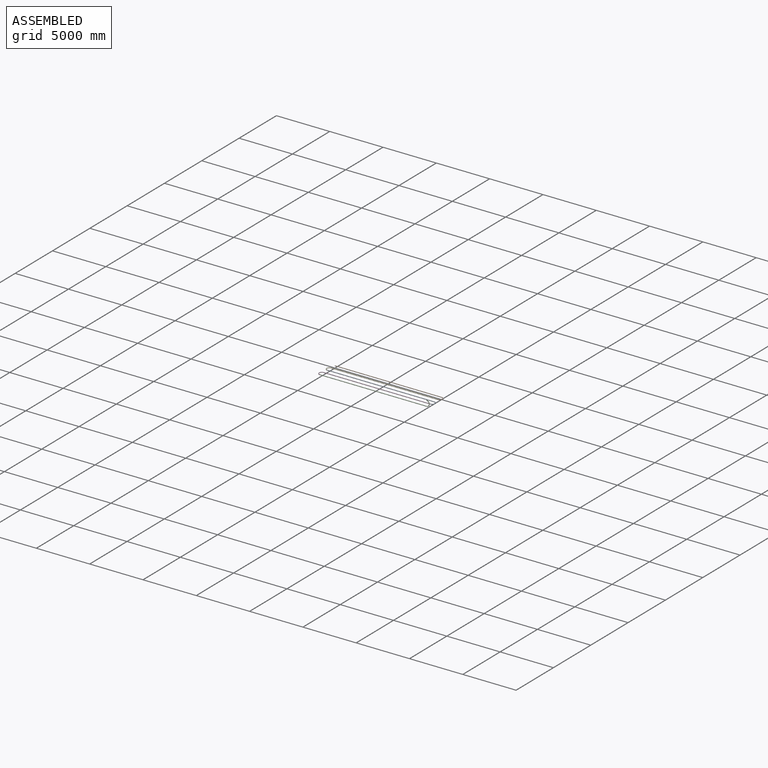
[diagram: assembled view]
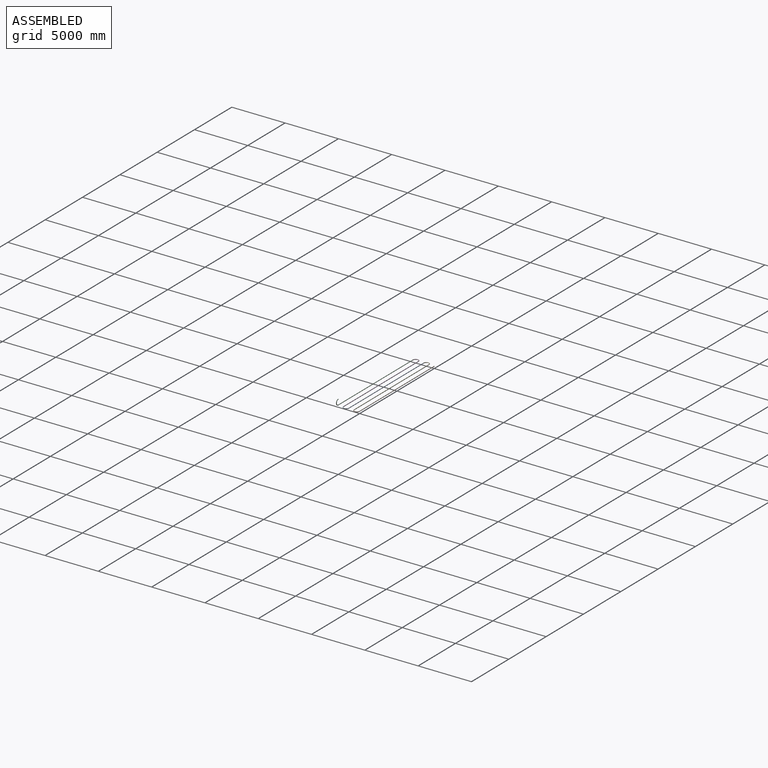
[diagram: assembled view, second angle]
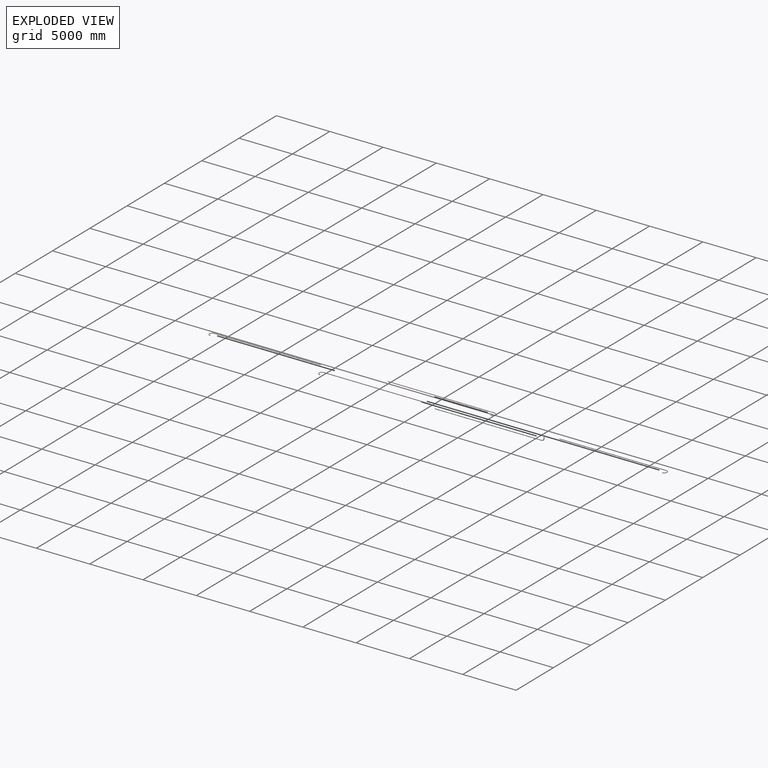
[diagram: exploded view]
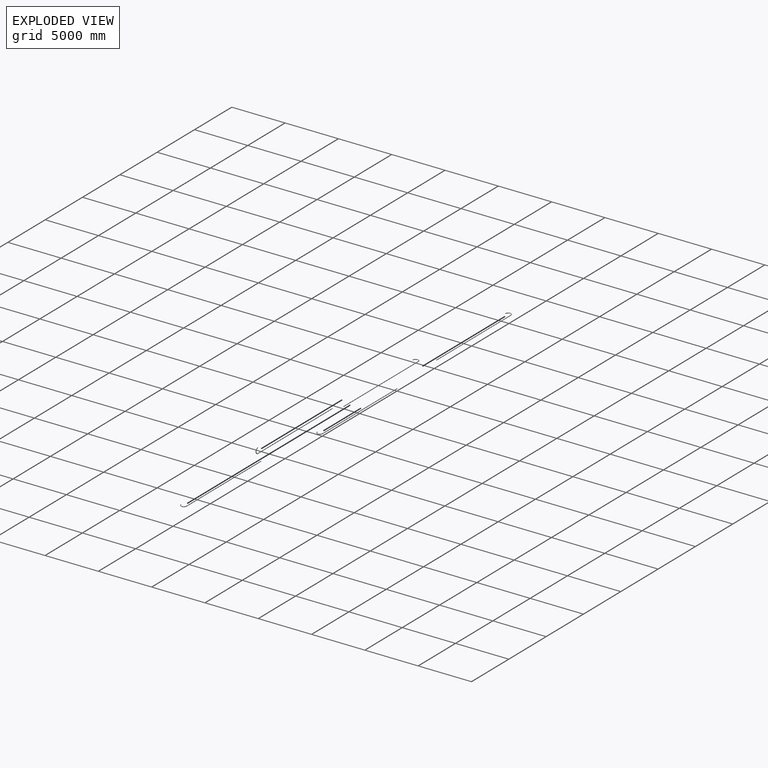
[diagram: exploded view, second angle]
ASSEMBLY  parts=5 mates=4
PART A: 6 faces, bbox 10303.2x60.3x606.5 mm
  f0: cylinder r=24.61mm len=10000mm, axis (1,0,0), area 1546291.9mm2, adj f1,f2
  f1: torus R=250mm, axis (0,-1,0), area 121445.5mm2, adj f0,f3
  f2: plane 60.3x60.3mm, normal (-1,0,0), area 953.1mm2, adj f0,f4
  f3: plane 60.3x60.3mm, normal (-1,0,0), area 953.1mm2, adj f1,f5
  f4: cylinder r=30.15mm len=10000mm, axis (1,0,0), area 1894380.4mm2, adj f2,f5
  f5: torus R=250mm, axis (0,-1,0), area 148784.3mm2, adj f3,f4
PART B: same geometry as A
PART C: same geometry as A
PART D: same geometry as A
PART E: same geometry as A
PLACE A rot(axis=(1,0,0),90deg) t=(0,-1000,0)mm
PLACE B rot(axis=(1,0,0),90deg) t=(0,0,0)mm
PLACE C t=(0,-2000,0)mm
PLACE D rot(axis=(0,-0.71,0.71),180deg) t=(10000,-1500,0)mm
PLACE E rot(axis=(0,-0.71,0.71),180deg) t=(10000,-500,0)mm
MATE fastened D.f4 <-> A.f3  axis (1,0,0) through (10000,-1500,0)mm
MATE fastened A.f4 <-> E.f3  axis (-1,0,0) through (0,-1000,0)mm
MATE fastened B.f3 <-> E.f4  axis (-1,0,0) through (10000,-500,0)mm
MATE fastened C.f4 <-> D.f3  axis (-1,0,0) through (0,-2000,0)mm
